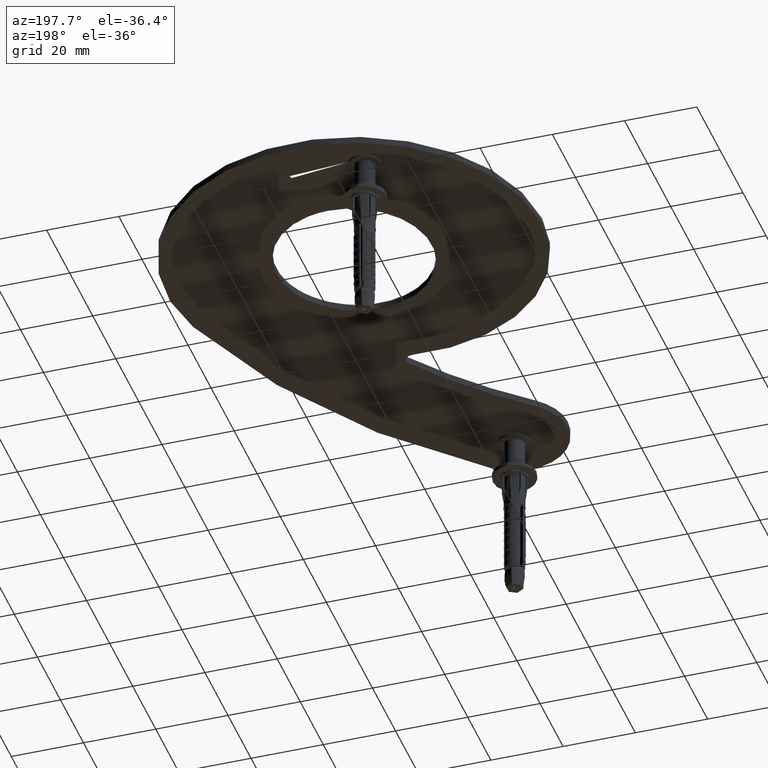
[diagram: clean part render]
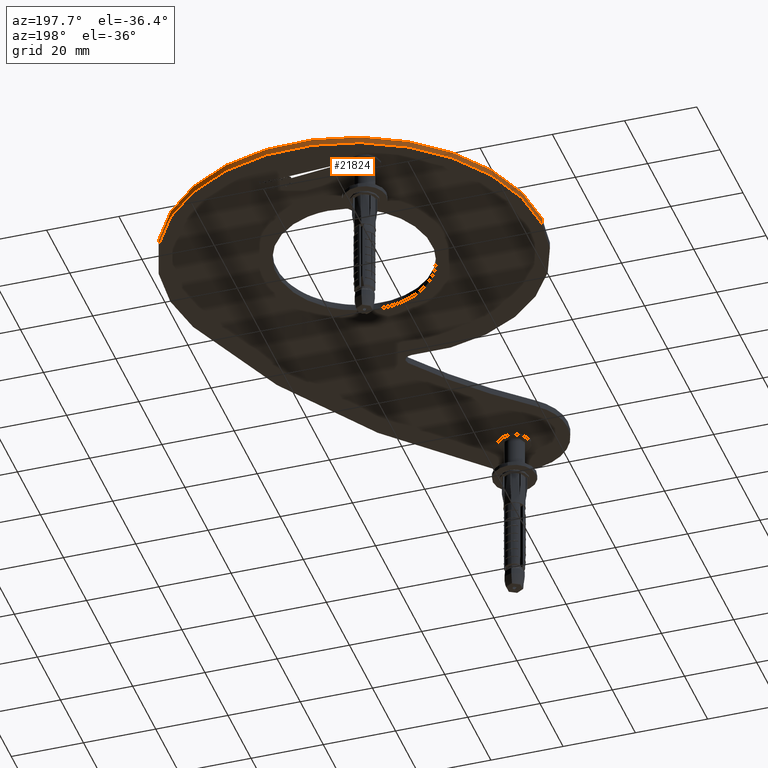
[diagram: same view with one face highlighted and labeled with its STEP entity id]
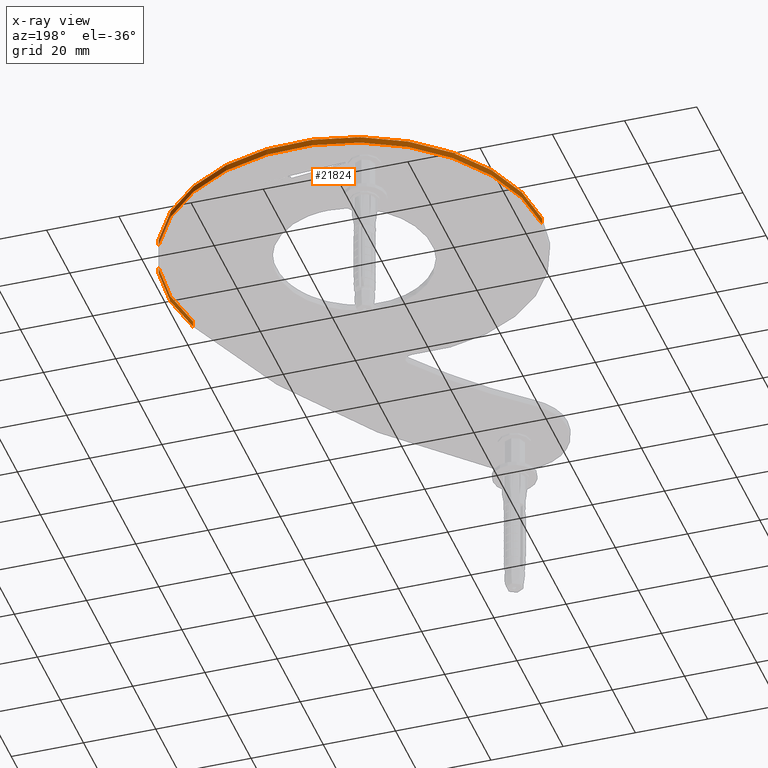
[diagram: x-ray of the same camera — body ghosted, the highlighted face saturated]
A machine part, auxiliary view. The second image highlights one B-rep face of the part: STEP entity #21824.
The next image is the same camera in x-ray: the body ghosted, the highlighted face saturated — about 0% of this face is hidden behind the body in this view.
In plain terms, the highlighted cylindrical surface (partial cylindrical patch) has radius 52 mm, axis along (-0, -0, -1).
Its self-contained STEP definition (entity closure, byte-faithful):
#748 = CIRCLE ( 'NONE', #5758, 52.00000000000002842 ) ;
#1509 = CARTESIAN_POINT ( 'NONE',  ( 27.48599119485729858, 97.64738338989700139, 0.000000000000000000 ) ) ;
#2822 = CARTESIAN_POINT ( 'NONE',  ( 77.09773571845948936, 82.06936023787835666, 2.000000000000000000 ) ) ;
#3385 = CARTESIAN_POINT ( 'NONE',  ( -24.51400880514272629, 97.64738338989700139, 1.750000000000000000 ) ) ;
#5758 = AXIS2_PLACEMENT_3D ( 'NONE', #24197, #39440, #8987 ) ;
#6914 = EDGE_CURVE ( 'NONE', #10548, #29901, #748, .T. ) ;
#7715 = DIRECTION ( 'NONE',  ( -0.000000000000000000, -0.000000000000000000, -1.000000000000000000 ) ) ;
#8987 = DIRECTION ( 'NONE',  ( -1.000000000000000000, 0.000000000000000000, 0.000000000000000000 ) ) ;
#10453 = DIRECTION ( 'NONE',  ( 0.000000000000000000, 0.000000000000000000, 1.000000000000000000 ) ) ;
#10548 = VERTEX_POINT ( 'NONE', #3385 ) ;
#10876 = EDGE_CURVE ( 'NONE', #29901, #34894, #13449, .T. ) ;
#13155 = AXIS2_PLACEMENT_3D ( 'NONE', #21699, #28148, #31314 ) ;
#13449 = LINE ( 'NONE', #2822, #16826 ) ;
#14948 = DIRECTION ( 'NONE',  ( -0.000000000000000000, -0.000000000000000000, -1.000000000000000000 ) ) ;
#16826 = VECTOR ( 'NONE', #14948, 1000.000000000000000 ) ;
#16934 = VERTEX_POINT ( 'NONE', #34223 ) ;
#18957 = CARTESIAN_POINT ( 'NONE',  ( 77.09773571845948936, 82.06936023787835666, 1.750000000000000000 ) ) ;
#19860 = CARTESIAN_POINT ( 'NONE',  ( -24.51400880514272629, 97.64738338989700139, 2.000000000000000000 ) ) ;
#19992 = ORIENTED_EDGE ( 'NONE', *, *, #38247, .F. ) ;
#20554 = ORIENTED_EDGE ( 'NONE', *, *, #25110, .T. ) ;
#21699 = CARTESIAN_POINT ( 'NONE',  ( 27.48599119485729858, 97.64738338989700139, 2.000000000000000000 ) ) ;
#21824 = ADVANCED_FACE ( 'NONE', ( #36893 ), #25459, .T. ) ;
#22052 = EDGE_LOOP ( 'NONE', ( #19992, #36029, #34725, #20554 ) ) ;
#24197 = CARTESIAN_POINT ( 'NONE',  ( 27.48599119485729858, 97.64738338989700139, 1.750000000000000000 ) ) ;
#25110 = EDGE_CURVE ( 'NONE', #34894, #16934, #29633, .T. ) ;
#25459 = CYLINDRICAL_SURFACE ( 'NONE', #13155, 52.00000000000002842 ) ;
#28148 = DIRECTION ( 'NONE',  ( -0.000000000000000000, -0.000000000000000000, -1.000000000000000000 ) ) ;
#29633 = CIRCLE ( 'NONE', #31196, 52.00000000000003553 ) ;
#29901 = VERTEX_POINT ( 'NONE', #18957 ) ;
#31196 = AXIS2_PLACEMENT_3D ( 'NONE', #1509, #10453, #31802 ) ;
#31314 = DIRECTION ( 'NONE',  ( -1.000000000000000000, 0.000000000000000000, 0.000000000000000000 ) ) ;
#31802 = DIRECTION ( 'NONE',  ( 1.000000000000000000, 0.000000000000000000, 0.000000000000000000 ) ) ;
#33096 = CARTESIAN_POINT ( 'NONE',  ( 77.09773571845948936, 82.06936023787835666, 0.000000000000000000 ) ) ;
#34223 = CARTESIAN_POINT ( 'NONE',  ( -24.51400880514272629, 97.64738338989700139, 0.000000000000000000 ) ) ;
#34239 = LINE ( 'NONE', #19860, #34726 ) ;
#34725 = ORIENTED_EDGE ( 'NONE', *, *, #10876, .T. ) ;
#34726 = VECTOR ( 'NONE', #7715, 1000.000000000000000 ) ;
#34894 = VERTEX_POINT ( 'NONE', #33096 ) ;
#36029 = ORIENTED_EDGE ( 'NONE', *, *, #6914, .T. ) ;
#36893 = FACE_OUTER_BOUND ( 'NONE', #22052, .T. ) ;
#38247 = EDGE_CURVE ( 'NONE', #10548, #16934, #34239, .T. ) ;
#39440 = DIRECTION ( 'NONE',  ( -0.000000000000000000, -0.000000000000000000, -1.000000000000000000 ) ) ;